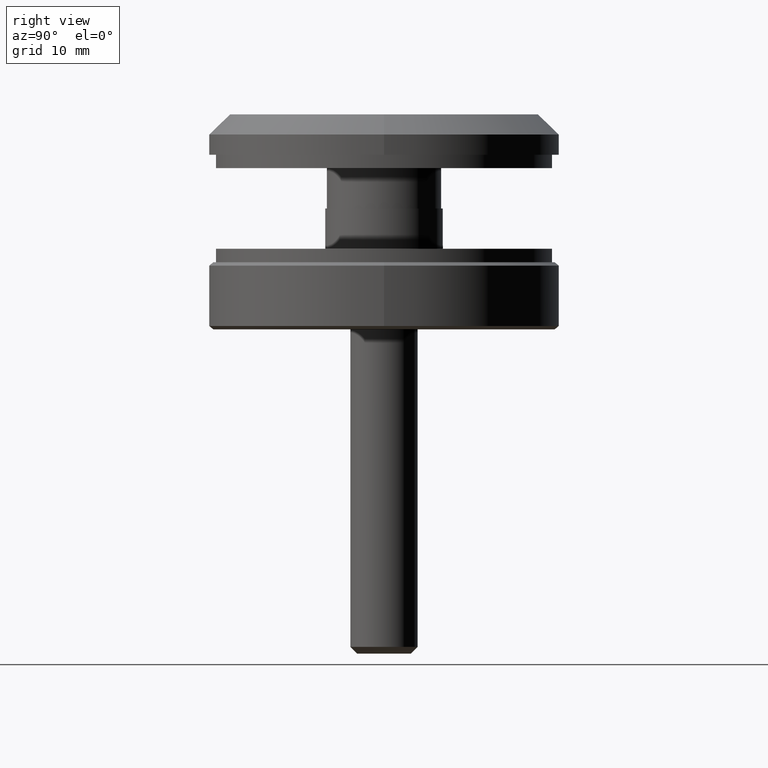
[diagram: clean part render]
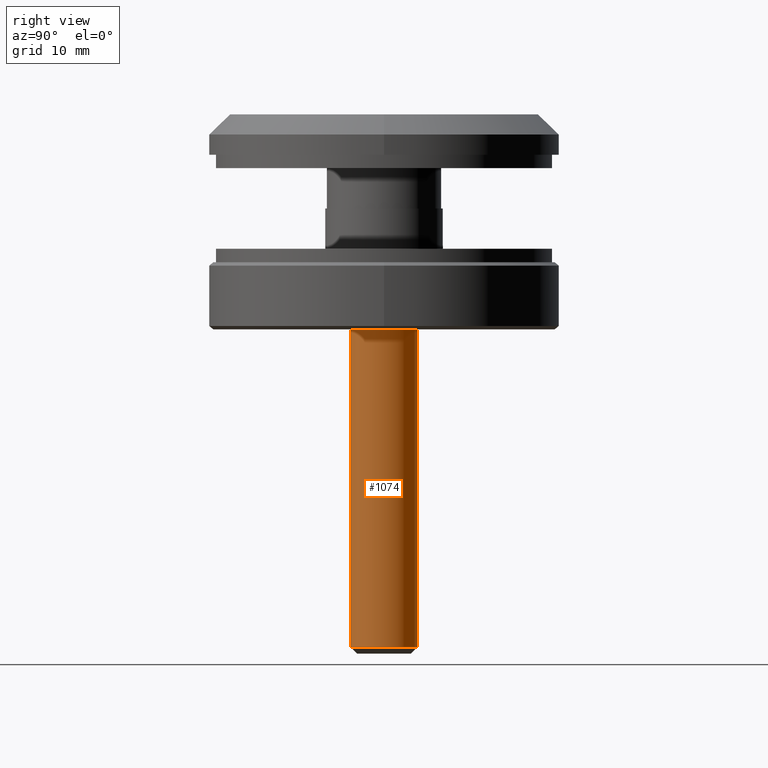
[diagram: same view with one face highlighted and labeled with its STEP entity id]
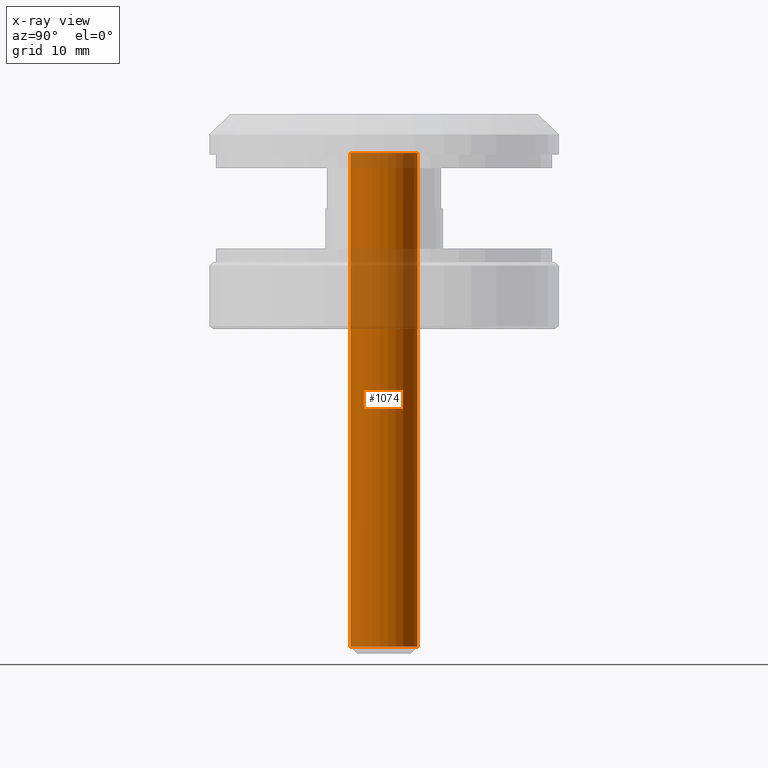
[diagram: x-ray of the same camera — body ghosted, the highlighted face saturated]
A machine part, right view. The second image highlights one B-rep face of the part: STEP entity #1074.
The next image is the same camera in x-ray: the body ghosted, the highlighted face saturated — about 19% of this face is hidden behind the body in this view.
In plain terms, the highlighted cylindrical surface (edge-blend (fillet) strip) has radius 5 mm, axis along (-0, -0, 1).
Its self-contained STEP definition (entity closure, byte-faithful):
#845 = DIRECTION ( 'NONE',  ( 0.000000000000000000, 1.224646799147363561E-16, -1.000000000000000000 ) ) ;
#857 = DIRECTION ( 'NONE',  ( -0.000000000000000000, 1.224646799147362821E-16, -1.000000000000000000 ) ) ;
#991 = CARTESIAN_POINT ( 'NONE',  ( 5.828670879282098658E-15, 5.000000000000044409, 6.123233995736777129E-16 ) ) ;
#1074 = ADVANCED_FACE ( 'NONE', ( #10672 ), #8268, .T. ) ;
#1230 = AXIS2_PLACEMENT_3D ( 'NONE', #2759, #14316, #12119 ) ;
#2759 = CARTESIAN_POINT ( 'NONE',  ( 0.000000000000000000, 0.000000000000000000, 0.000000000000000000 ) ) ;
#3072 = CARTESIAN_POINT ( 'NONE',  ( -5.216347479708367697E-15, -4.999999999999997335, 5.500000000000004441 ) ) ;
#3463 = AXIS2_PLACEMENT_3D ( 'NONE', #10869, #857, #16163 ) ;
#3559 = CIRCLE ( 'NONE', #3463, 5.000000000000044409 ) ;
#4541 = VECTOR ( 'NONE', #845, 1000.000000000000000 ) ;
#4805 = CARTESIAN_POINT ( 'NONE',  ( 5.828670879282098658E-15, 5.000000000000042633, 5.500000000000005329 ) ) ;
#5638 = VERTEX_POINT ( 'NONE', #4805 ) ;
#6724 = LINE ( 'NONE', #12390, #4541 ) ;
#6838 = CARTESIAN_POINT ( 'NONE',  ( 5.828670879282112858E-15, 5.000000000000033751, 79.00000000000002842 ) ) ;
#6933 = ORIENTED_EDGE ( 'NONE', *, *, #13465, .F. ) ;
#7933 = VERTEX_POINT ( 'NONE', #6838 ) ;
#8268 = CYLINDRICAL_SURFACE ( 'NONE', #1230, 5.000000000000044409 ) ;
#8312 = ORIENTED_EDGE ( 'NONE', *, *, #9783, .F. ) ;
#9783 = EDGE_CURVE ( 'NONE', #11462, #5638, #14713, .T. ) ;
#10257 = VECTOR ( 'NONE', #13602, 1000.000000000000000 ) ;
#10672 = FACE_OUTER_BOUND ( 'NONE', #15972, .T. ) ;
#10869 = CARTESIAN_POINT ( 'NONE',  ( 1.511855006343980145E-29, -9.674709713264191878E-15, 79.00000000000002842 ) ) ;
#11197 = EDGE_CURVE ( 'NONE', #7933, #5638, #11690, .T. ) ;
#11462 = VERTEX_POINT ( 'NONE', #3072 ) ;
#11618 = CARTESIAN_POINT ( 'NONE',  ( 9.629649721936179265E-31, -6.735557395310515979E-16, 5.500000000000005329 ) ) ;
#11690 = LINE ( 'NONE', #991, #10257 ) ;
#11956 = AXIS2_PLACEMENT_3D ( 'NONE', #11618, #16621, #16558 ) ;
#12119 = DIRECTION ( 'NONE',  ( 1.165734175856409437E-15, 1.000000000000000000, 1.224646799147344579E-16 ) ) ;
#12287 = CARTESIAN_POINT ( 'NONE',  ( -5.216347479708401618E-15, -5.000000000000055067, 79.00000000000002842 ) ) ;
#12390 = CARTESIAN_POINT ( 'NONE',  ( -5.216347479708416607E-15, -5.000000000000044409, -6.123233995736777129E-16 ) ) ;
#13465 = EDGE_CURVE ( 'NONE', #14279, #11462, #6724, .T. ) ;
#13510 = ORIENTED_EDGE ( 'NONE', *, *, #11197, .T. ) ;
#13602 = DIRECTION ( 'NONE',  ( 0.000000000000000000, 1.224646799147363561E-16, -1.000000000000000000 ) ) ;
#14279 = VERTEX_POINT ( 'NONE', #12287 ) ;
#14316 = DIRECTION ( 'NONE',  ( 0.000000000000000000, 1.224646799147363561E-16, -1.000000000000000000 ) ) ;
#14713 = CIRCLE ( 'NONE', #11956, 5.000000000000043521 ) ;
#14968 = EDGE_CURVE ( 'NONE', #14279, #7933, #3559, .T. ) ;
#15972 = EDGE_LOOP ( 'NONE', ( #6933, #16411, #13510, #8312 ) ) ;
#16163 = DIRECTION ( 'NONE',  ( -1.165734175856409437E-15, -1.000000000000000000, 0.000000000000000000 ) ) ;
#16411 = ORIENTED_EDGE ( 'NONE', *, *, #14968, .T. ) ;
#16558 = DIRECTION ( 'NONE',  ( 1.165734175856409437E-15, 1.000000000000000000, 1.734723475976792057E-16 ) ) ;
#16621 = DIRECTION ( 'NONE',  ( 0.000000000000000000, 1.224646799147363314E-16, -1.000000000000000000 ) ) ;